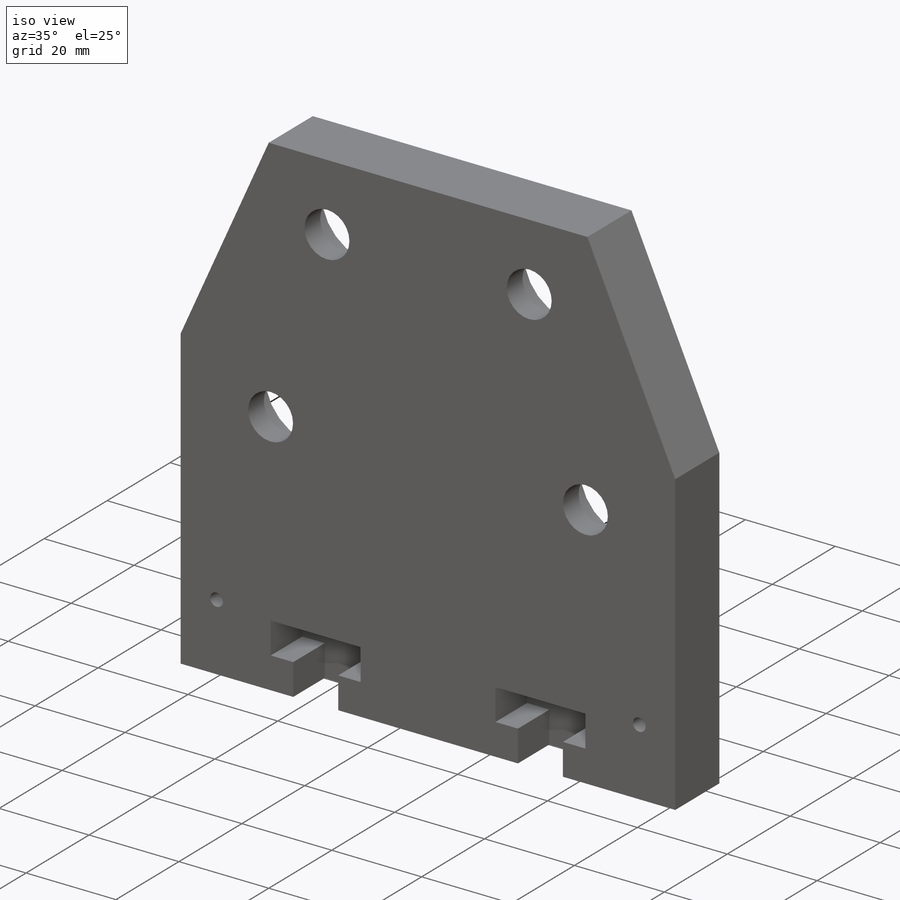
[diagram: iso view]
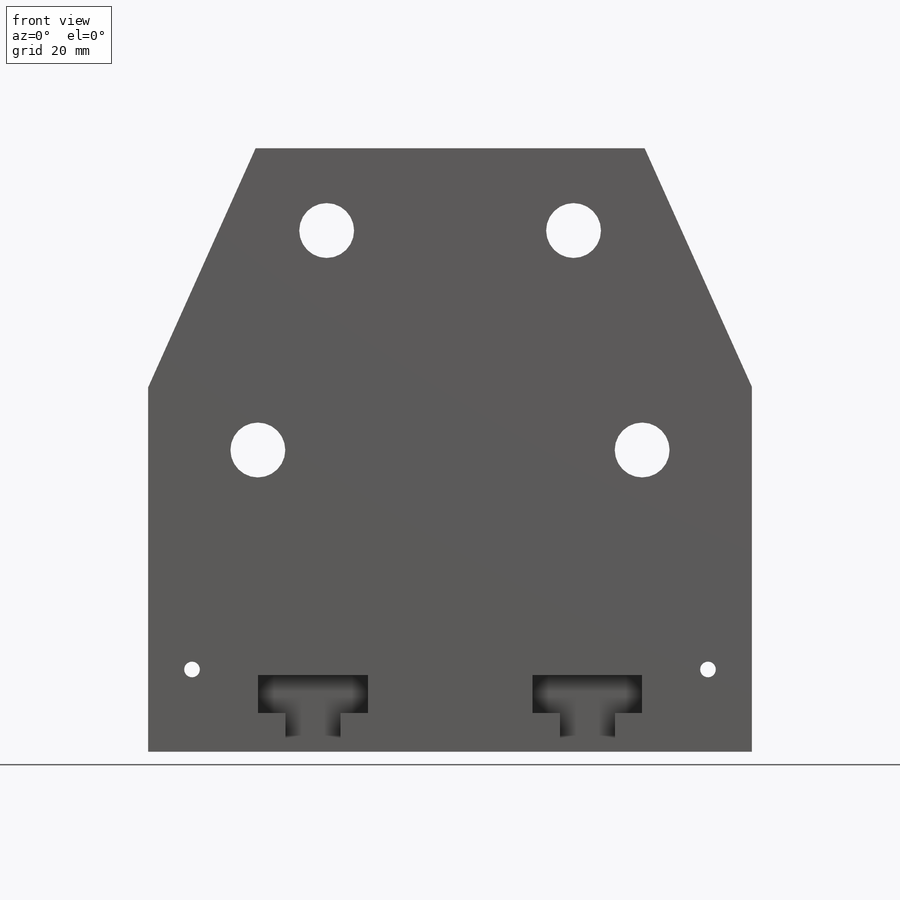
[diagram: front view]
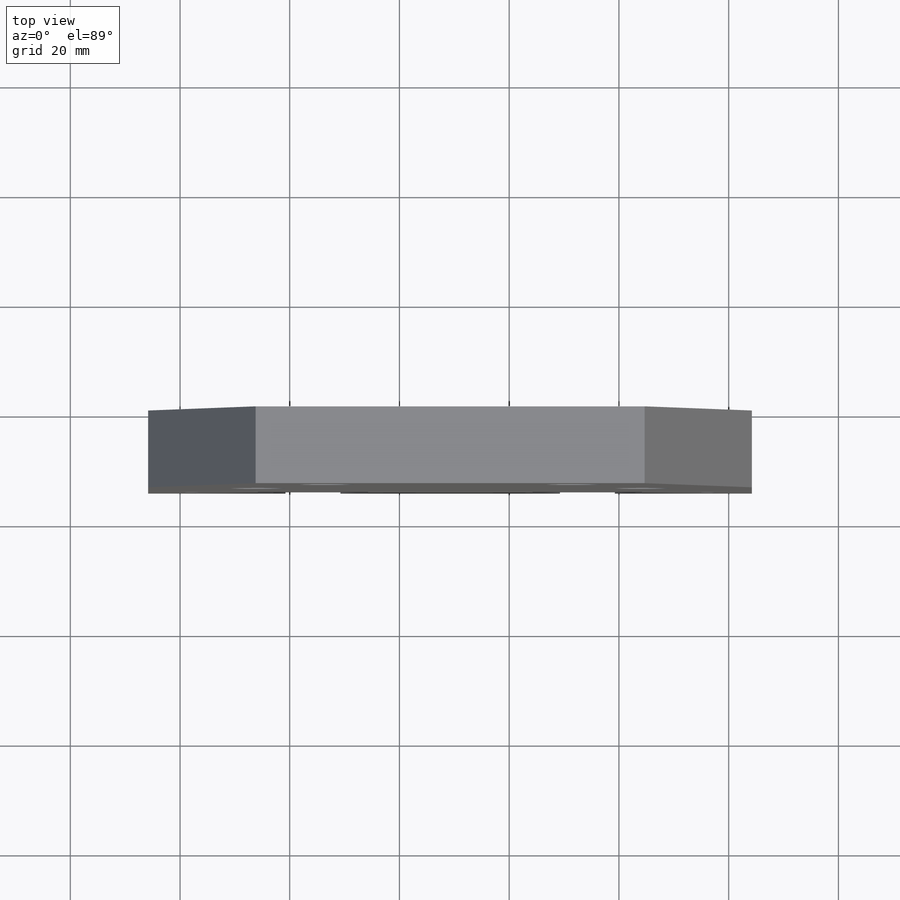
[diagram: top view]
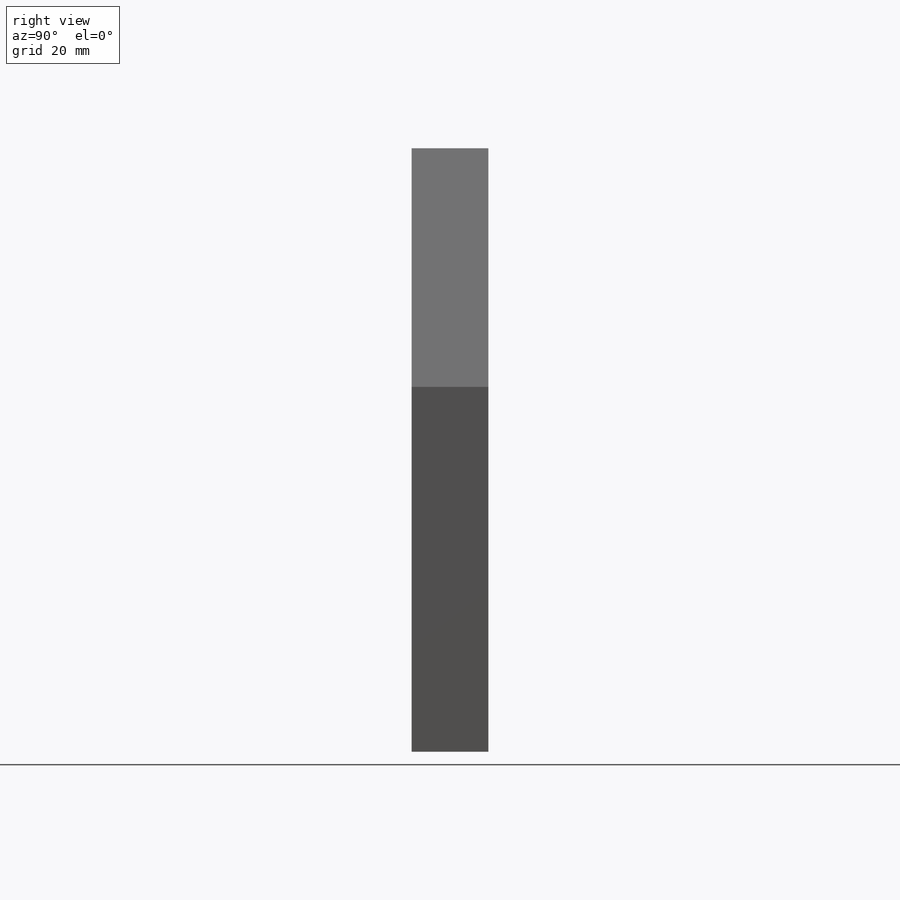
[diagram: right view]
SOLIDWORKS PART (.sldprt)
format: sldprt  version: not decoded by parser v0  size: 450,048 bytes
history: native  units: mm
features: sketch x7, extrude x3, cut_extrude x2, material x1 (+13 scaffold rows collapsed)
feature tree (26):
  scaffold x13  (default folders/planes/origin — collapsed)
  material  "Material <not specified>"
  sketch  "Sketch3"  dims[c1.D7=22.1mm c1.D8=22.1mm c1.D13=23.0mm c1.D14=22.1mm c2.D13=22.1mm c2.D1=150.0mm c2.D2=110.0mm c2.D3=15.0mm c2.D4=15.0mm c2.D5=45.0mm c2.D6=52.5mm c2.D9=90.0mm c2.D10=40.0mm c2.D11=90.0mm c2.D12=40.0mm c3.D9=55.0mm c3.D11=55.0mm c3.D15=0.0mm c3.D16=30.0mm c3.D17=~19.325806mm c4.D15=1.0mm c4.D16=40.0mm c4.D17=1.0mm c4.D18=100.0mm c4.D19=1.0mm c4.D20=40.0mm c4.D21=1.0mm c4.D22=100.0mm c4.D2=20.0mm c5.D15=20.0mm c5.D16=~72.840208mm c6.D16=0.0deg c6.D17=~75.801494mm c7.D17=0.0deg]
  extrude  "Boss-Extrude1"  Depth=14mm
  sketch  "Sketch4"  dims[D6=22.1mm D8=22.1mm D10=22.1mm D12=22.1mm D13=10.0mm D14=10.0mm D15=10.0mm D16=10.0mm D1=0.0mm D2=0.0mm D3=0.0mm D4=0.0mm D5=0.0mm D7=0.0mm D9=0.0mm D11=0.0mm]
  sketch  "Sketch5"  dims[D1=45.0mm D2=40.0mm D3=0.0mm D4=7.0mm D5=0.0mm D6=7.0mm D7=20.0mm D8=0.0mm D9=7.0mm D10=0.0mm D11=7.0mm D12=40.0mm D13=45.0mm D14=10.0mm D15=20.0mm D16=10.0mm]
  cut_extrude  "Cut-Extrude3"  Depth=10mm
  sketch  "Sketch6"  dims[c1.D1=~20.281304mm c1.D2=~20.281304mm c1.D3=22.1mm c1.D4=~13.608254mm c2.D4=12.0mm c2.D5=~15.540464mm c2.D6=~15.540464mm c2.D7=22.1mm c2.D8=12.0mm c2.D9=~16.694506mm c2.D10=~19.373153mm c2.D11=22.1mm c2.D12=12.0mm c2.D13=~20.205592mm c3.D13=~20.205592mm c3.D14=~20.205592mm c3.D15=22.1mm c3.D16=12.0mm c3.D1=0.0mm c3.D2=0.0mm c3.D5=0.0mm c3.D6=0.0mm c3.D9=0.0mm c3.D10=0.0mm c4.D13=0.0mm c4.D14=0.0mm]
  extrude  "Boss-Extrude4"  Depth=5mm
  sketch  "Sketch7"  dims[D1=2.85mm D6=2.85mm D2=15.0mm D3=8.0mm D4=15.0mm D5=8.0mm]
  sketch  "Sketch8"  dims[D5=2.85mm D6=2.85mm D1=15.0mm D2=15.0mm D3=8.0mm D4=8.0mm]
  cut_extrude  "Cut-Extrude5"  Depth=14mm
  extrude  "Boss-Extrude2"  Depth=5mm
  sketch  "Sketch9"
decode coverage: 11 of 12 modeling features carry decoded parameters
note: ~ marks probable driven/reference dimensions
note: suppression state not decoded; provenance and decode notes live in map.json
